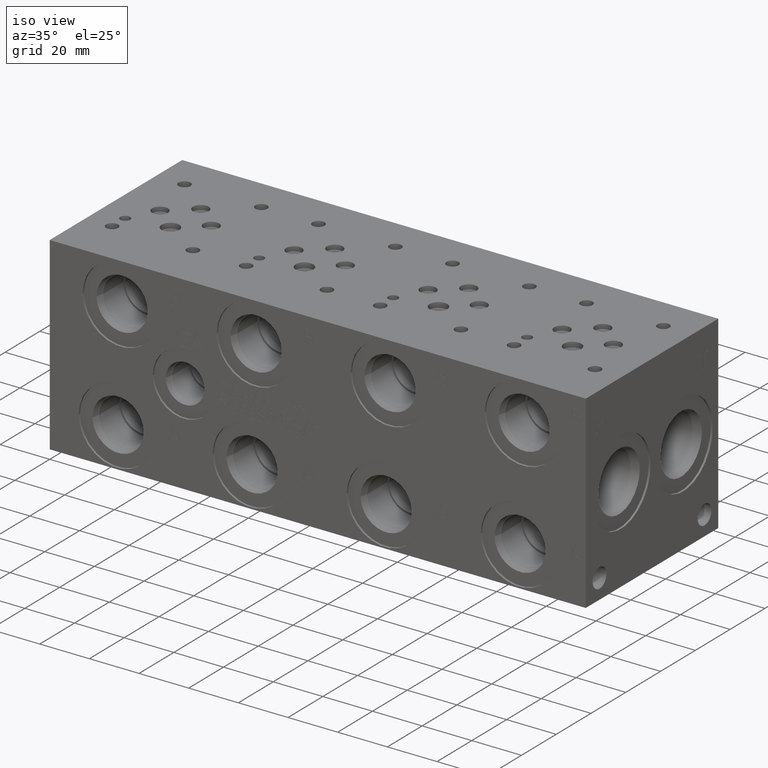
[diagram: clean part render]
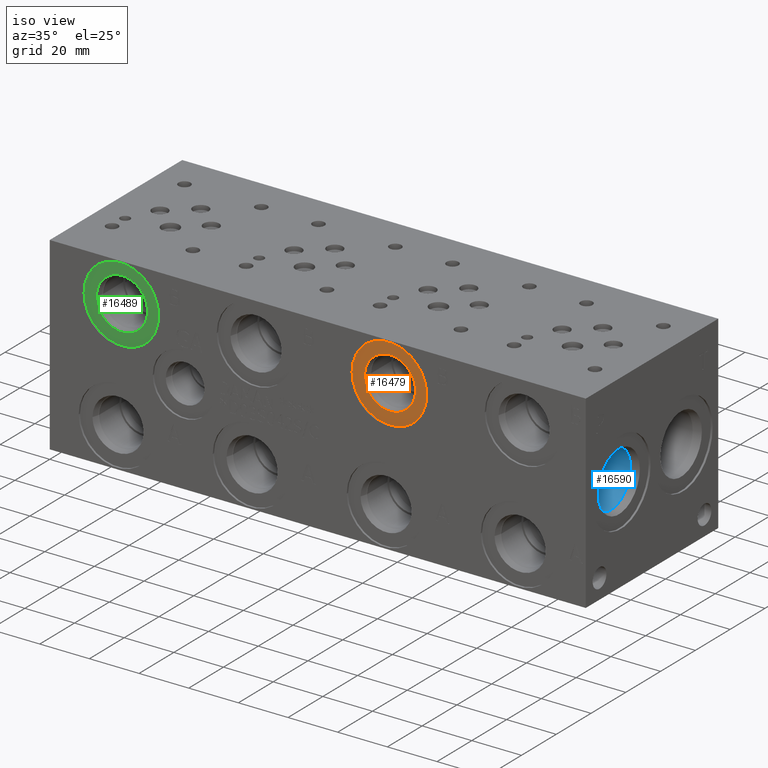
[diagram: same view with three faces highlighted in distinct colors, each labeled with its STEP entity id]
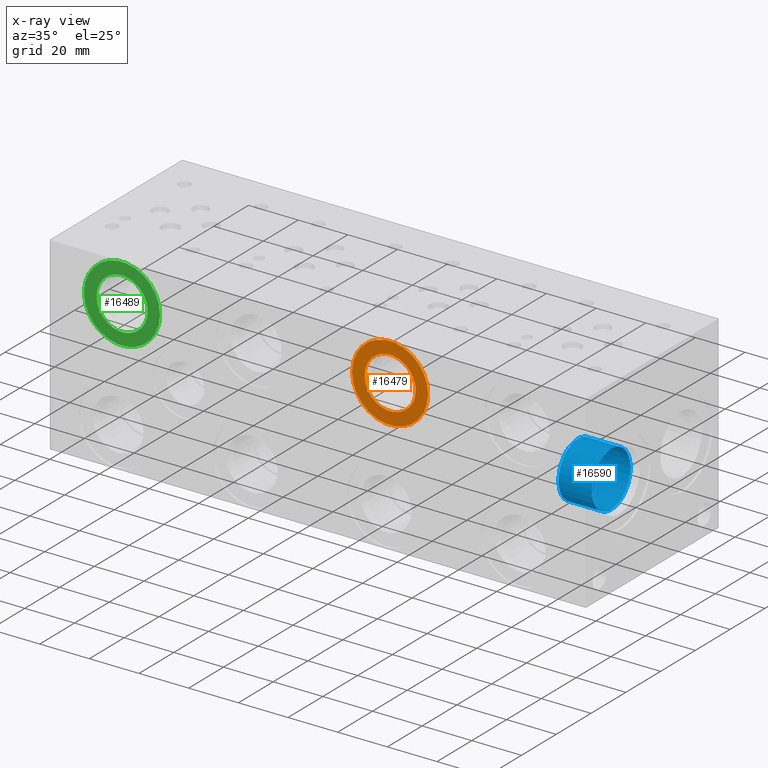
[diagram: x-ray of the same camera — body ghosted, the three highlighted faces saturated]
A machine part, iso view with three faces highlighted in distinct colors.
The next image is the same camera in x-ray (body ghosted, the three faces saturated) — at least one of them is partly hidden behind the body in this view.
Their STEP definitions:

[orange] entity #16479 — the highlighted planar face has unit normal (0, 1, 0).
#317=CIRCLE('',#17231,15.3162);
#318=CIRCLE('',#17232,15.3162);
#319=CIRCLE('',#17234,10.2997);
#320=CIRCLE('',#17235,10.2997);
#821=FACE_BOUND('',#3069,.T.);
#2119=FACE_OUTER_BOUND('',#3068,.T.);
#3068=EDGE_LOOP('',(#13524,#13525));
#3069=EDGE_LOOP('',(#13526,#13527));
#7405=VERTEX_POINT('',#27761);
#7406=VERTEX_POINT('',#27763);
#7407=VERTEX_POINT('',#27767);
#7408=VERTEX_POINT('',#27768);
#9568=EDGE_CURVE('',#7405,#7406,#317,.T.);
#9569=EDGE_CURVE('',#7406,#7405,#318,.T.);
#9570=EDGE_CURVE('',#7407,#7408,#319,.T.);
#9571=EDGE_CURVE('',#7408,#7407,#320,.T.);
#13524=ORIENTED_EDGE('',*,*,#9569,.F.);
#13525=ORIENTED_EDGE('',*,*,#9568,.F.);
#13526=ORIENTED_EDGE('',*,*,#9570,.T.);
#13527=ORIENTED_EDGE('',*,*,#9571,.T.);
#15260=PLANE('',#17233);
#16479=ADVANCED_FACE('',(#2119,#821),#15260,.F.);
#17231=AXIS2_PLACEMENT_3D('',#27764,#20073,#20074);
#17232=AXIS2_PLACEMENT_3D('',#27765,#20075,#20076);
#17233=AXIS2_PLACEMENT_3D('',#27766,#20077,#20078);
#17234=AXIS2_PLACEMENT_3D('',#27769,#20079,#20080);
#17235=AXIS2_PLACEMENT_3D('',#27770,#20081,#20082);
#20073=DIRECTION('center_axis',(0.,1.,0.));
#20074=DIRECTION('ref_axis',(1.,0.,0.));
#20075=DIRECTION('center_axis',(0.,1.,0.));
#20076=DIRECTION('ref_axis',(1.,0.,0.));
#20077=DIRECTION('center_axis',(0.,1.,0.));
#20078=DIRECTION('ref_axis',(0.,0.,1.));
#20079=DIRECTION('center_axis',(0.,1.,0.));
#20080=DIRECTION('ref_axis',(1.,0.,0.));
#20081=DIRECTION('center_axis',(0.,1.,0.));
#20082=DIRECTION('ref_axis',(1.,0.,0.));
#27761=CARTESIAN_POINT('',(121.2088,0.7874,60.325));
#27763=CARTESIAN_POINT('',(151.8412,0.7874,60.325));
#27764=CARTESIAN_POINT('Origin',(136.525,0.7874,60.325));
#27765=CARTESIAN_POINT('Origin',(136.525,0.7874,60.325));
#27766=CARTESIAN_POINT('Origin',(146.8247,0.7874,60.325));
#27767=CARTESIAN_POINT('',(146.8247,0.7874,60.325));
#27768=CARTESIAN_POINT('',(126.2253,0.7874,60.325));
#27769=CARTESIAN_POINT('Origin',(136.525,0.7874,60.325));
#27770=CARTESIAN_POINT('Origin',(136.525,0.7874,60.325));

[blue] entity #16590 — the highlighted cylindrical surface (bore or boss wall) has radius 11.1125 mm, axis along (1, 0, 0).
#173=CYLINDRICAL_SURFACE('',#17515,11.1125);
#487=CIRCLE('',#17512,11.1125);
#488=CIRCLE('',#17513,11.1125);
#490=CIRCLE('',#17516,11.1125);
#2230=FACE_OUTER_BOUND('',#3200,.T.);
#3200=EDGE_LOOP('',(#14059,#14060,#14061,#14062,#14063));
#4714=LINE('',#28323,#6139);
#6139=VECTOR('',#20735,11.1125);
#7586=VERTEX_POINT('',#28314);
#7587=VERTEX_POINT('',#28315);
#7589=VERTEX_POINT('',#28321);
#9828=EDGE_CURVE('',#7586,#7587,#487,.T.);
#9829=EDGE_CURVE('',#7587,#7586,#488,.T.);
#9831=EDGE_CURVE('',#7589,#7589,#490,.T.);
#9832=EDGE_CURVE('',#7589,#7587,#4714,.T.);
#14059=ORIENTED_EDGE('',*,*,#9831,.F.);
#14060=ORIENTED_EDGE('',*,*,#9832,.T.);
#14061=ORIENTED_EDGE('',*,*,#9828,.F.);
#14062=ORIENTED_EDGE('',*,*,#9829,.F.);
#14063=ORIENTED_EDGE('',*,*,#9832,.F.);
#16590=ADVANCED_FACE('',(#2230),#173,.F.);
#17512=AXIS2_PLACEMENT_3D('',#28316,#20725,#20726);
#17513=AXIS2_PLACEMENT_3D('',#28317,#20727,#20728);
#17515=AXIS2_PLACEMENT_3D('',#28320,#20731,#20732);
#17516=AXIS2_PLACEMENT_3D('',#28322,#20733,#20734);
#20725=DIRECTION('center_axis',(1.,0.,0.));
#20726=DIRECTION('ref_axis',(0.,1.,0.));
#20727=DIRECTION('center_axis',(1.,0.,0.));
#20728=DIRECTION('ref_axis',(0.,1.,0.));
#20731=DIRECTION('center_axis',(1.,0.,0.));
#20732=DIRECTION('ref_axis',(0.,1.,0.));
#20733=DIRECTION('center_axis',(-1.,0.,0.));
#20734=DIRECTION('ref_axis',(0.,1.,0.));
#20735=DIRECTION('',(-1.,0.,0.));
#28314=CARTESIAN_POINT('',(198.4502,31.3563,38.1));
#28315=CARTESIAN_POINT('',(198.4502,9.1313,38.1));
#28316=CARTESIAN_POINT('Origin',(198.4502,20.2438,38.1));
#28317=CARTESIAN_POINT('Origin',(198.4502,20.2438,38.1));
#28320=CARTESIAN_POINT('Origin',(207.1751,20.2438,38.1));
#28321=CARTESIAN_POINT('',(211.982615013096,9.1313,38.1));
#28322=CARTESIAN_POINT('Origin',(211.982615013096,20.2438,38.1));
#28323=CARTESIAN_POINT('',(207.1751,9.1313,38.1));

[green] entity #16489 — the highlighted planar face has unit normal (0, 1, 0).
#335=CIRCLE('',#17259,15.3162);
#336=CIRCLE('',#17260,15.3162);
#337=CIRCLE('',#17262,10.2997);
#338=CIRCLE('',#17263,10.2997);
#823=FACE_BOUND('',#3081,.T.);
#2129=FACE_OUTER_BOUND('',#3080,.T.);
#3080=EDGE_LOOP('',(#13578,#13579));
#3081=EDGE_LOOP('',(#13580,#13581));
#7423=VERTEX_POINT('',#27815);
#7424=VERTEX_POINT('',#27817);
#7425=VERTEX_POINT('',#27821);
#7426=VERTEX_POINT('',#27822);
#9594=EDGE_CURVE('',#7423,#7424,#335,.T.);
#9595=EDGE_CURVE('',#7424,#7423,#336,.T.);
#9596=EDGE_CURVE('',#7425,#7426,#337,.T.);
#9597=EDGE_CURVE('',#7426,#7425,#338,.T.);
#13578=ORIENTED_EDGE('',*,*,#9595,.F.);
#13579=ORIENTED_EDGE('',*,*,#9594,.F.);
#13580=ORIENTED_EDGE('',*,*,#9596,.T.);
#13581=ORIENTED_EDGE('',*,*,#9597,.T.);
#15262=PLANE('',#17261);
#16489=ADVANCED_FACE('',(#2129,#823),#15262,.F.);
#17259=AXIS2_PLACEMENT_3D('',#27818,#20137,#20138);
#17260=AXIS2_PLACEMENT_3D('',#27819,#20139,#20140);
#17261=AXIS2_PLACEMENT_3D('',#27820,#20141,#20142);
#17262=AXIS2_PLACEMENT_3D('',#27823,#20143,#20144);
#17263=AXIS2_PLACEMENT_3D('',#27824,#20145,#20146);
#20137=DIRECTION('center_axis',(0.,1.,0.));
#20138=DIRECTION('ref_axis',(1.,0.,0.));
#20139=DIRECTION('center_axis',(0.,1.,0.));
#20140=DIRECTION('ref_axis',(1.,0.,0.));
#20141=DIRECTION('center_axis',(0.,1.,0.));
#20142=DIRECTION('ref_axis',(0.,0.,1.));
#20143=DIRECTION('center_axis',(0.,1.,0.));
#20144=DIRECTION('ref_axis',(1.,0.,0.));
#20145=DIRECTION('center_axis',(0.,1.,0.));
#20146=DIRECTION('ref_axis',(1.,0.,0.));
#27815=CARTESIAN_POINT('',(13.2588,0.7874,60.325));
#27817=CARTESIAN_POINT('',(43.8912,0.7874,60.325));
#27818=CARTESIAN_POINT('Origin',(28.575,0.7874,60.325));
#27819=CARTESIAN_POINT('Origin',(28.575,0.7874,60.325));
#27820=CARTESIAN_POINT('Origin',(38.8747,0.7874,60.325));
#27821=CARTESIAN_POINT('',(38.8747,0.7874,60.325));
#27822=CARTESIAN_POINT('',(18.2753,0.787399999999999,60.325));
#27823=CARTESIAN_POINT('Origin',(28.575,0.7874,60.325));
#27824=CARTESIAN_POINT('Origin',(28.575,0.7874,60.325));